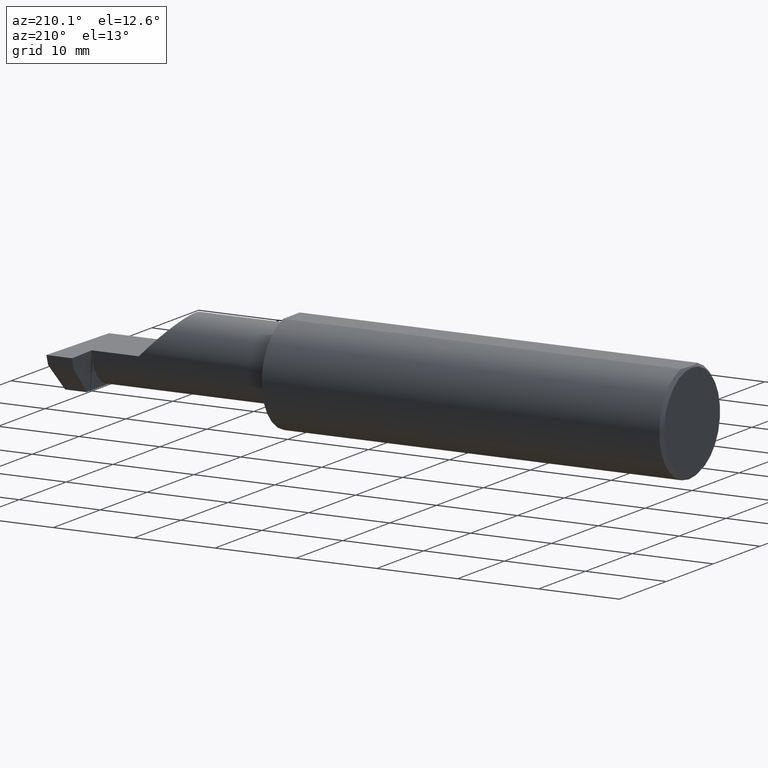
[diagram: clean part render]
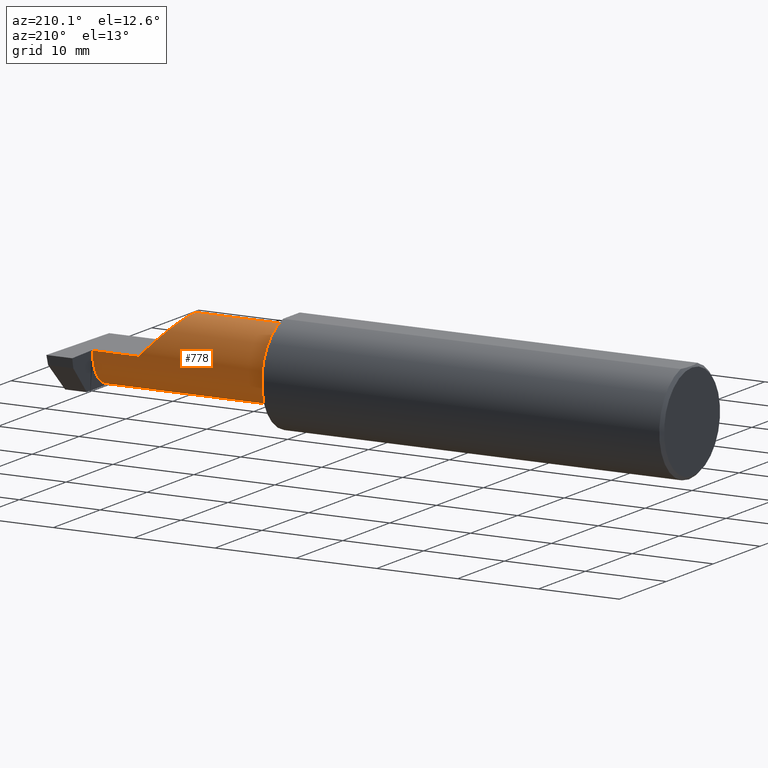
[diagram: same view with one face highlighted and labeled with its STEP entity id]
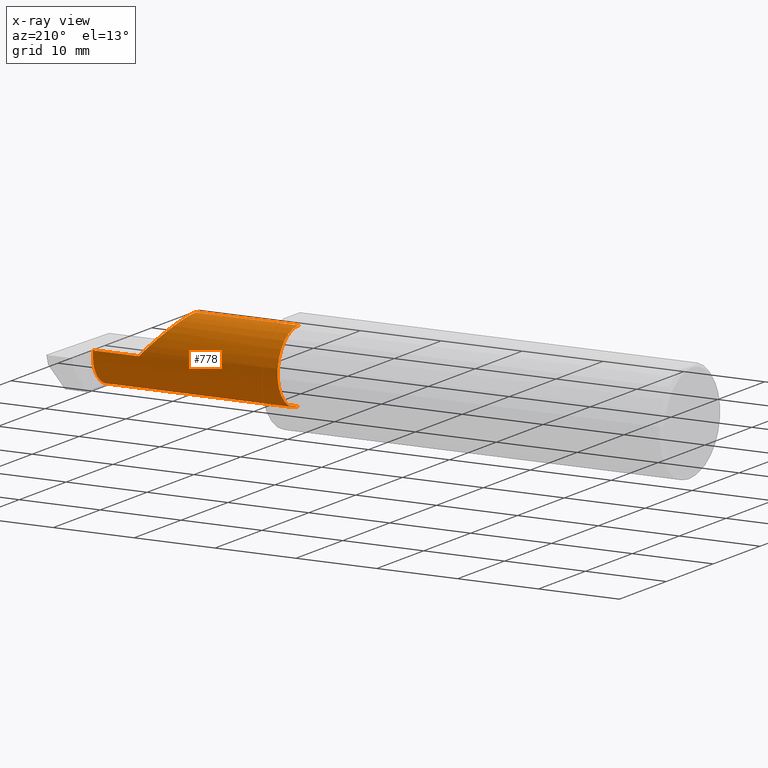
[diagram: x-ray of the same camera — body ghosted, the highlighted face saturated]
A machine part, auxiliary view. The second image highlights one B-rep face of the part: STEP entity #778.
The next image is the same camera in x-ray: the body ghosted, the highlighted face saturated — about 0% of this face is hidden behind the body in this view.
In plain terms, the highlighted cylindrical surface (partial cylindrical patch) has radius 4.445 mm, axis along (-1, -0, -0).
Its self-contained STEP definition (entity closure, byte-faithful):
#1 = CARTESIAN_POINT ( 'NONE',  ( 2.885036419112082751, -0.01887343476265496492, -0.1750000000000000444 ) ) ;
#5 = CARTESIAN_POINT ( 'NONE',  ( 2.874000000000000110, 0.07414999999999997982, 1.285877240036560800E-16 ) ) ;
#25 = CARTESIAN_POINT ( 'NONE',  ( 2.475000000000001421, -0.1008499999999999674, 0.1749999999999999889 ) ) ;
#40 = ORIENTED_EDGE ( 'NONE', *, *, #488, .T. ) ;
#52 = EDGE_CURVE ( 'NONE', #258, #188, #102, .T. ) ;
#60 = AXIS2_PLACEMENT_3D ( 'NONE', #106, #727, #490 ) ;
#89 = AXIS2_PLACEMENT_3D ( 'NONE', #726, #611, #178 ) ;
#90 = DIRECTION ( 'NONE',  ( 0.000000000000000000, 0.000000000000000000, 1.000000000000000000 ) ) ;
#102 = LINE ( 'NONE', #605, #561 ) ;
#103 = EDGE_CURVE ( 'NONE', #188, #121, #220, .T. ) ;
#106 = CARTESIAN_POINT ( 'NONE',  ( 1.975000000000000089, -0.1008499999999999674, 0.000000000000000000 ) ) ;
#121 = VERTEX_POINT ( 'NONE', #555 ) ;
#152 = EDGE_CURVE ( 'NONE', #595, #363, #499, .T. ) ;
#157 = DIRECTION ( 'NONE',  ( -1.000000000000000000, -0.000000000000000000, -0.000000000000000000 ) ) ;
#178 = DIRECTION ( 'NONE',  ( 0.000000000000000000, 0.000000000000000000, 1.000000000000000000 ) ) ;
#183 = LINE ( 'NONE', #323, #647 ) ;
#188 = VERTEX_POINT ( 'NONE', #732 ) ;
#189 = DIRECTION ( 'NONE',  ( 1.000000000000000000, 0.000000000000000000, 0.000000000000000000 ) ) ;
#204 = CARTESIAN_POINT ( 'NONE',  ( 2.475000000000001421, -0.1008499999999999674, 0.1749999999999999889 ) ) ;
#217 = ORIENTED_EDGE ( 'NONE', *, *, #591, .T. ) ;
#220 = CIRCLE ( 'NONE', #60, 0.1749999999999999889 ) ;
#230 = EDGE_LOOP ( 'NONE', ( #316, #354, #505, #721, #742, #217, #40, #579 ) ) ;
#232 = DIRECTION ( 'NONE',  ( -1.000000000000000000, -0.000000000000000000, -0.000000000000000000 ) ) ;
#258 = VERTEX_POINT ( 'NONE', #204 ) ;
#282 = EDGE_CURVE ( 'NONE', #388, #121, #618, .T. ) ;
#315 = CARTESIAN_POINT ( 'NONE',  ( 1.950000000000000178, -0.1008499999999999536, -0.1749999999999999889 ) ) ;
#316 = ORIENTED_EDGE ( 'NONE', *, *, #629, .F. ) ;
#323 = CARTESIAN_POINT ( 'NONE',  ( 1.950000000000000178, 0.07414999999999997982, 1.285879139104718760E-16 ) ) ;
#339 = CARTESIAN_POINT ( 'NONE',  ( 2.547487373415292744, 0.07414999999999996594, 0.1025126265847083745 ) ) ;
#343 = CARTESIAN_POINT ( 'NONE',  ( 2.650000000000000355, 0.07414999999999997982, 4.286263797015727350E-17 ) ) ;
#354 = ORIENTED_EDGE ( 'NONE', *, *, #282, .T. ) ;
#362 =( BOUNDED_CURVE ( )  B_SPLINE_CURVE ( 3, ( #679, #1, #448, #571 ),
 .UNSPECIFIED., .F., .T. ) 
 B_SPLINE_CURVE_WITH_KNOTS ( ( 4, 4 ),
 ( 3.140373936913444908, 4.443983221546777607 ),
 .UNSPECIFIED. ) 
 CURVE ( )  GEOMETRIC_REPRESENTATION_ITEM ( )  RATIONAL_B_SPLINE_CURVE ( ( 1.000000000000000000, 0.8633269052189371795, 0.8633269052189371795, 1.000000000000000000 ) ) 
 REPRESENTATION_ITEM ( '' )  );
#363 = VERTEX_POINT ( 'NONE', #472 ) ;
#381 = VECTOR ( 'NONE', #157, 39.37007874015748143 ) ;
#388 = VERTEX_POINT ( 'NONE', #638 ) ;
#389 =( BOUNDED_CURVE ( )  B_SPLINE_CURVE ( 3, ( #25, #692, #339, #343 ),
 .UNSPECIFIED., .F., .T. ) 
 B_SPLINE_CURVE_WITH_KNOTS ( ( 4, 4 ),
 ( 0.000000000000000000, 1.570796326794896558 ),
 .UNSPECIFIED. ) 
 CURVE ( )  GEOMETRIC_REPRESENTATION_ITEM ( )  RATIONAL_B_SPLINE_CURVE ( ( 1.000000000000000000, 0.8047378541243649375, 0.8047378541243649375, 1.000000000000000000 ) ) 
 REPRESENTATION_ITEM ( '' )  );
#404 = CYLINDRICAL_SURFACE ( 'NONE', #636, 0.1749999999999999889 ) ;
#408 = VERTEX_POINT ( 'NONE', #589 ) ;
#447 = CIRCLE ( 'NONE', #89, 0.1749999999999999889 ) ;
#448 = CARTESIAN_POINT ( 'NONE',  ( 2.881564601548837423, 0.04629714416892564965, -0.1252712066320194051 ) ) ;
#454 = FACE_OUTER_BOUND ( 'NONE', #230, .T. ) ;
#472 = CARTESIAN_POINT ( 'NONE',  ( 2.874000000000000110, 0.07414987299205305638, -0.0002108382441793307837 ) ) ;
#488 = EDGE_CURVE ( 'NONE', #639, #363, #447, .T. ) ;
#490 = DIRECTION ( 'NONE',  ( 0.000000000000000000, 0.000000000000000000, 1.000000000000000000 ) ) ;
#499 =( BOUNDED_CURVE ( )  B_SPLINE_CURVE ( 3, ( #564, #560, #684, #501 ),
 .UNSPECIFIED., .F., .T. ) 
 B_SPLINE_CURVE_WITH_KNOTS ( ( 4, 4 ),
 ( 4.443983221546778495, 4.709965478757016655 ),
 .UNSPECIFIED. ) 
 CURVE ( )  GEOMETRIC_REPRESENTATION_ITEM ( )  RATIONAL_B_SPLINE_CURVE ( ( 1.000000000000000000, 0.9941131374841131185, 0.9941131374841131185, 1.000000000000000000 ) ) 
 REPRESENTATION_ITEM ( '' )  );
#501 = CARTESIAN_POINT ( 'NONE',  ( 2.874000000000000110, 0.07414987299205305638, -0.0002108382441793307837 ) ) ;
#505 = ORIENTED_EDGE ( 'NONE', *, *, #103, .F. ) ;
#555 = CARTESIAN_POINT ( 'NONE',  ( 1.975000000000000089, -0.1008499999999999536, -0.1749999999999999889 ) ) ;
#560 = CARTESIAN_POINT ( 'NONE',  ( 2.875372681961405608, 0.07204909126152565790, -0.03119400421533637113 ) ) ;
#561 = VECTOR ( 'NONE', #232, 39.37007874015748143 ) ;
#564 = CARTESIAN_POINT ( 'NONE',  ( 2.876037492458068279, 0.06794054266098323303, -0.04620338416404774079 ) ) ;
#571 = CARTESIAN_POINT ( 'NONE',  ( 2.876037492458068279, 0.06794054266098323303, -0.04620338416404774079 ) ) ;
#579 = ORIENTED_EDGE ( 'NONE', *, *, #152, .F. ) ;
#589 = CARTESIAN_POINT ( 'NONE',  ( 2.650000000000000355, 0.07414999999999997982, 4.286263797015727350E-17 ) ) ;
#591 = EDGE_CURVE ( 'NONE', #408, #639, #183, .T. ) ;
#592 = CARTESIAN_POINT ( 'NONE',  ( 1.950000000000000178, -0.1008499999999999674, 0.000000000000000000 ) ) ;
#595 = VERTEX_POINT ( 'NONE', #626 ) ;
#605 = CARTESIAN_POINT ( 'NONE',  ( 1.950000000000000178, -0.1008499999999999674, 0.1749999999999999889 ) ) ;
#611 = DIRECTION ( 'NONE',  ( -1.000000000000000000, -0.000000000000000000, -0.000000000000000000 ) ) ;
#618 = LINE ( 'NONE', #315, #381 ) ;
#626 = CARTESIAN_POINT ( 'NONE',  ( 2.876037492458068279, 0.06794054266098323303, -0.04620338416404774079 ) ) ;
#629 = EDGE_CURVE ( 'NONE', #388, #595, #362, .T. ) ;
#636 = AXIS2_PLACEMENT_3D ( 'NONE', #592, #648, #90 ) ;
#638 = CARTESIAN_POINT ( 'NONE',  ( 2.885029432995152909, -0.1008500000000000091, -0.1749999999999999889 ) ) ;
#639 = VERTEX_POINT ( 'NONE', #5 ) ;
#647 = VECTOR ( 'NONE', #189, 39.37007874015748143 ) ;
#648 = DIRECTION ( 'NONE',  ( -1.000000000000000000, -0.000000000000000000, -0.000000000000000000 ) ) ;
#679 = CARTESIAN_POINT ( 'NONE',  ( 2.885029432995152909, -0.1008500000000000091, -0.1749999999999999889 ) ) ;
#680 = EDGE_CURVE ( 'NONE', #258, #408, #389, .T. ) ;
#684 = CARTESIAN_POINT ( 'NONE',  ( 2.874689495973013820, 0.07413112468343002748, -0.01577237022675150382 ) ) ;
#692 = CARTESIAN_POINT ( 'NONE',  ( 2.475000000000001421, 0.001662626584708371512, 0.1749999999999999889 ) ) ;
#721 = ORIENTED_EDGE ( 'NONE', *, *, #52, .F. ) ;
#726 = CARTESIAN_POINT ( 'NONE',  ( 2.874000000000000110, -0.1008499999999999674, 0.000000000000000000 ) ) ;
#727 = DIRECTION ( 'NONE',  ( -1.000000000000000000, -0.000000000000000000, -0.000000000000000000 ) ) ;
#732 = CARTESIAN_POINT ( 'NONE',  ( 1.975000000000000089, -0.1008499999999999674, 0.1749999999999999889 ) ) ;
#742 = ORIENTED_EDGE ( 'NONE', *, *, #680, .T. ) ;
#778 = ADVANCED_FACE ( 'NONE', ( #454 ), #404, .T. ) ;